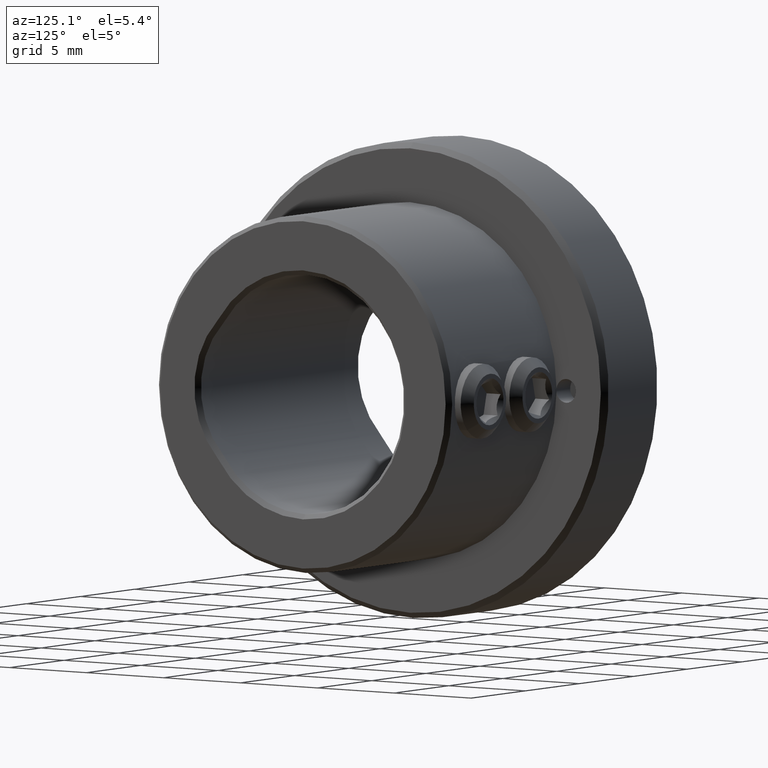
[diagram: clean part render]
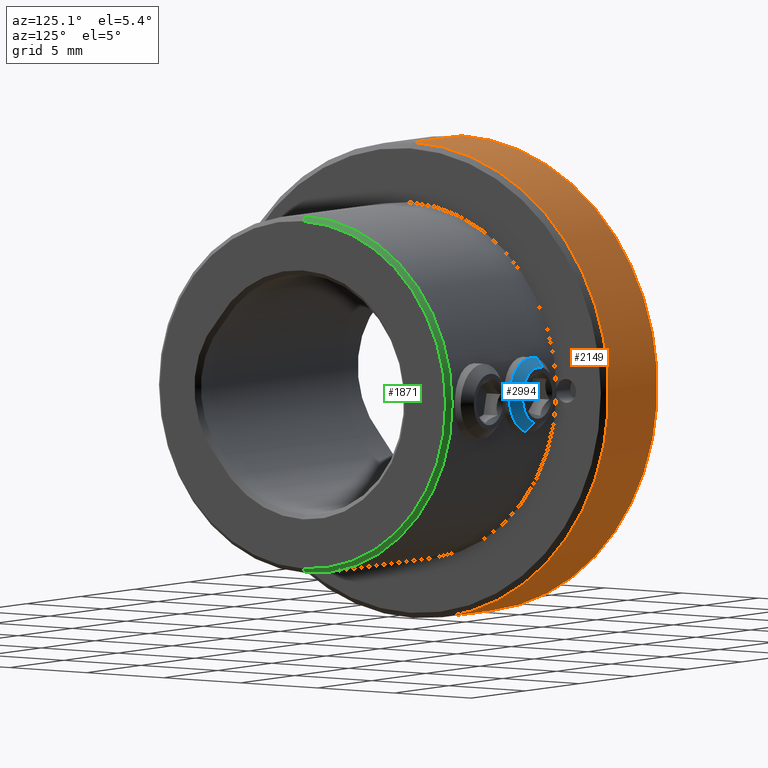
[diagram: same view with three faces highlighted in distinct colors, each labeled with its STEP entity id]
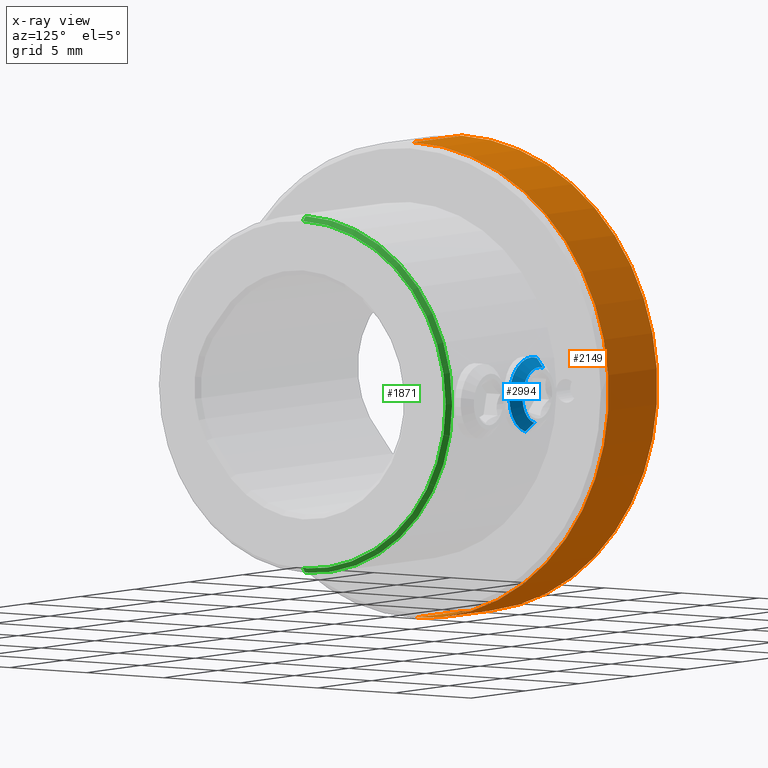
[diagram: x-ray of the same camera — body ghosted, the three highlighted faces saturated]
A machine part, auxiliary view with three faces highlighted in distinct colors.
The next image is the same camera in x-ray (body ghosted, the three faces saturated) — at least one of them is partly hidden behind the body in this view.
Their STEP definitions:

[orange] entity #2149 — the highlighted cylindrical surface (partial cylindrical patch) has radius 12.7 mm, axis along (-1, -0, -0).
#112 = ORIENTED_EDGE ( 'NONE', *, *, #961, .T. ) ;
#121 = VERTEX_POINT ( 'NONE', #1655 ) ;
#179 = DIRECTION ( 'NONE',  ( 0.000000000000000000, 0.000000000000000000, -1.000000000000000000 ) ) ;
#249 = LINE ( 'NONE', #1357, #844 ) ;
#397 = ORIENTED_EDGE ( 'NONE', *, *, #4854, .T. ) ;
#533 = CARTESIAN_POINT ( 'NONE',  ( 0.2999999999999964362, 0.000000000000000000, 0.000000000000000000 ) ) ;
#555 = CIRCLE ( 'NONE', #2724, 12.69999999999999929 ) ;
#613 = AXIS2_PLACEMENT_3D ( 'NONE', #533, #3509, #179 ) ;
#685 = CARTESIAN_POINT ( 'NONE',  ( 15.00000000000000000, 0.000000000000000000, 0.000000000000000000 ) ) ;
#765 = FACE_OUTER_BOUND ( 'NONE', #975, .T. ) ;
#844 = VECTOR ( 'NONE', #2106, 1000.000000000000000 ) ;
#936 = EDGE_CURVE ( 'NONE', #1084, #3660, #988, .T. ) ;
#961 = EDGE_CURVE ( 'NONE', #1695, #121, #249, .T. ) ;
#975 = EDGE_LOOP ( 'NONE', ( #397, #112, #4475, #3399 ) ) ;
#988 = LINE ( 'NONE', #4377, #1464 ) ;
#1084 = VERTEX_POINT ( 'NONE', #4241 ) ;
#1201 = CARTESIAN_POINT ( 'NONE',  ( 4.800000000000002487, 0.000000000000000000, 0.000000000000000000 ) ) ;
#1357 = CARTESIAN_POINT ( 'NONE',  ( 15.00000000000000000, 1.555301434917138433E-15, -12.69999999999999929 ) ) ;
#1464 = VECTOR ( 'NONE', #4007, 1000.000000000000000 ) ;
#1655 = CARTESIAN_POINT ( 'NONE',  ( 0.2999999999999964362, 1.555301434917138433E-15, -12.69999999999999929 ) ) ;
#1668 = CARTESIAN_POINT ( 'NONE',  ( 0.2999999999999964362, 0.000000000000000000, 12.69999999999999929 ) ) ;
#1695 = VERTEX_POINT ( 'NONE', #1808 ) ;
#1808 = CARTESIAN_POINT ( 'NONE',  ( 4.800000000000002487, 1.555301434917138433E-15, -12.69999999999999929 ) ) ;
#2047 = EDGE_CURVE ( 'NONE', #121, #3660, #2711, .T. ) ;
#2106 = DIRECTION ( 'NONE',  ( -1.000000000000000000, -0.000000000000000000, -0.000000000000000000 ) ) ;
#2149 = ADVANCED_FACE ( 'NONE', ( #765 ), #2613, .T. ) ;
#2171 = DIRECTION ( 'NONE',  ( 0.000000000000000000, 0.000000000000000000, 1.000000000000000000 ) ) ;
#2199 = DIRECTION ( 'NONE',  ( -1.000000000000000000, -0.000000000000000000, -0.000000000000000000 ) ) ;
#2473 = AXIS2_PLACEMENT_3D ( 'NONE', #685, #2199, #2171 ) ;
#2613 = CYLINDRICAL_SURFACE ( 'NONE', #2473, 12.69999999999999929 ) ;
#2711 = CIRCLE ( 'NONE', #613, 12.69999999999999929 ) ;
#2724 = AXIS2_PLACEMENT_3D ( 'NONE', #1201, #3446, #3726 ) ;
#3399 = ORIENTED_EDGE ( 'NONE', *, *, #936, .F. ) ;
#3446 = DIRECTION ( 'NONE',  ( -1.000000000000000000, 0.000000000000000000, 0.000000000000000000 ) ) ;
#3509 = DIRECTION ( 'NONE',  ( 1.000000000000000000, -0.000000000000000000, -0.000000000000000000 ) ) ;
#3660 = VERTEX_POINT ( 'NONE', #1668 ) ;
#3726 = DIRECTION ( 'NONE',  ( 0.000000000000000000, 0.000000000000000000, -1.000000000000000000 ) ) ;
#4007 = DIRECTION ( 'NONE',  ( -1.000000000000000000, -0.000000000000000000, -0.000000000000000000 ) ) ;
#4241 = CARTESIAN_POINT ( 'NONE',  ( 4.800000000000002487, 0.000000000000000000, 12.69999999999999929 ) ) ;
#4377 = CARTESIAN_POINT ( 'NONE',  ( 15.00000000000000000, 0.000000000000000000, 12.69999999999999929 ) ) ;
#4475 = ORIENTED_EDGE ( 'NONE', *, *, #2047, .T. ) ;
#4854 = EDGE_CURVE ( 'NONE', #1084, #1695, #555, .T. ) ;

[blue] entity #2994 — the highlighted conical surface has half-angle 45 deg.
#174 = EDGE_CURVE ( 'NONE', #3654, #2437, #1680, .T. ) ;
#291 = DIRECTION ( 'NONE',  ( 0.000000000000000000, -0.7071067811865484609, -0.7071067811865465735 ) ) ;
#373 = DIRECTION ( 'NONE',  ( 8.659560562354921765E-17, -0.7071067811865484609, 0.7071067811865465735 ) ) ;
#395 = AXIS2_PLACEMENT_3D ( 'NONE', #672, #3661, #1777 ) ;
#487 = ORIENTED_EDGE ( 'NONE', *, *, #1049, .T. ) ;
#672 = CARTESIAN_POINT ( 'NONE',  ( 0.000000000000000000, 3.000000000000000000, 0.000000000000000000 ) ) ;
#686 = LINE ( 'NONE', #2124, #1486 ) ;
#926 = VECTOR ( 'NONE', #373, 1000.000000000000000 ) ;
#1011 = DIRECTION ( 'NONE',  ( 0.000000000000000000, -1.000000000000000000, 0.000000000000000000 ) ) ;
#1026 = EDGE_CURVE ( 'NONE', #1762, #2089, #2950, .T. ) ;
#1049 = EDGE_CURVE ( 'NONE', #1762, #2437, #2691, .T. ) ;
#1238 = AXIS2_PLACEMENT_3D ( 'NONE', #4289, #1011, #3221 ) ;
#1253 = CARTESIAN_POINT ( 'NONE',  ( 0.000000000000000000, 2.499999999999999112, 0.000000000000000000 ) ) ;
#1486 = VECTOR ( 'NONE', #291, 1000.000000000000000 ) ;
#1680 = CIRCLE ( 'NONE', #4389, 2.000000000000000000 ) ;
#1762 = VERTEX_POINT ( 'NONE', #3670 ) ;
#1777 = DIRECTION ( 'NONE',  ( 0.000000000000000000, 0.000000000000000000, 1.000000000000000000 ) ) ;
#1889 = CARTESIAN_POINT ( 'NONE',  ( 0.000000000000000000, 3.000000000000000000, -1.500000000000000444 ) ) ;
#2089 = VERTEX_POINT ( 'NONE', #1889 ) ;
#2124 = CARTESIAN_POINT ( 'NONE',  ( 0.000000000000000000, 3.000000000000000000, -1.500000000000000444 ) ) ;
#2397 = CONICAL_SURFACE ( 'NONE', #1238, 1.500000000000000444, 0.7853981633974469467 ) ;
#2437 = VERTEX_POINT ( 'NONE', #4786 ) ;
#2691 = LINE ( 'NONE', #4519, #926 ) ;
#2737 = DIRECTION ( 'NONE',  ( 0.000000000000000000, 0.000000000000000000, 1.000000000000000000 ) ) ;
#2950 = CIRCLE ( 'NONE', #395, 1.500000000000000444 ) ;
#2994 = ADVANCED_FACE ( 'NONE', ( #4665 ), #2397, .T. ) ;
#3064 = DIRECTION ( 'NONE',  ( 0.000000000000000000, -1.000000000000000000, 0.000000000000000000 ) ) ;
#3221 = DIRECTION ( 'NONE',  ( 0.000000000000000000, 0.000000000000000000, -1.000000000000000000 ) ) ;
#3442 = ORIENTED_EDGE ( 'NONE', *, *, #174, .F. ) ;
#3555 = ORIENTED_EDGE ( 'NONE', *, *, #1026, .F. ) ;
#3654 = VERTEX_POINT ( 'NONE', #4229 ) ;
#3661 = DIRECTION ( 'NONE',  ( 0.000000000000000000, 1.000000000000000000, 0.000000000000000000 ) ) ;
#3670 = CARTESIAN_POINT ( 'NONE',  ( 2.143131898507868297E-16, 3.000000000000000000, 1.500000000000000444 ) ) ;
#4229 = CARTESIAN_POINT ( 'NONE',  ( 0.000000000000000000, 2.499999999999999112, -2.000000000000000000 ) ) ;
#4266 = ORIENTED_EDGE ( 'NONE', *, *, #4463, .F. ) ;
#4289 = CARTESIAN_POINT ( 'NONE',  ( 0.000000000000000000, 3.000000000000000000, 0.000000000000000000 ) ) ;
#4389 = AXIS2_PLACEMENT_3D ( 'NONE', #1253, #3064, #2737 ) ;
#4463 = EDGE_CURVE ( 'NONE', #2089, #3654, #686, .T. ) ;
#4519 = CARTESIAN_POINT ( 'NONE',  ( 1.836970198721030427E-16, 3.000000000000000000, 1.500000000000000444 ) ) ;
#4665 = FACE_OUTER_BOUND ( 'NONE', #4752, .T. ) ;
#4752 = EDGE_LOOP ( 'NONE', ( #3555, #487, #3442, #4266 ) ) ;
#4786 = CARTESIAN_POINT ( 'NONE',  ( 2.449293598294706414E-16, 2.499999999999999112, 2.000000000000000000 ) ) ;

[green] entity #1871 — the highlighted conical surface has half-angle 45 deg.
#72 = CIRCLE ( 'NONE', #2784, 9.525000000000000355 ) ;
#122 = CARTESIAN_POINT ( 'NONE',  ( 14.75000000000000000, 1.166476076187854022E-15, 9.525000000000000355 ) ) ;
#235 = DIRECTION ( 'NONE',  ( -1.000000000000000000, 0.000000000000000000, 0.000000000000000000 ) ) ;
#239 = DIRECTION ( 'NONE',  ( 1.000000000000000000, 0.000000000000000000, 0.000000000000000000 ) ) ;
#265 = DIRECTION ( 'NONE',  ( 0.000000000000000000, 0.000000000000000000, -1.000000000000000000 ) ) ;
#349 = EDGE_CURVE ( 'NONE', #2941, #4759, #72, .T. ) ;
#706 = CARTESIAN_POINT ( 'NONE',  ( 15.00000000000000000, 1.151167991198512128E-15, -9.275000000000002132 ) ) ;
#757 = CARTESIAN_POINT ( 'NONE',  ( 15.00000000000000000, 0.000000000000000000, 0.000000000000000000 ) ) ;
#792 = DIRECTION ( 'NONE',  ( -0.7071067811865500152, 0.000000000000000000, 0.7071067811865451302 ) ) ;
#808 = DIRECTION ( 'NONE',  ( -0.7071067811865500152, 8.659560562354903276E-17, -0.7071067811865451302 ) ) ;
#982 = CARTESIAN_POINT ( 'NONE',  ( 15.00000000000000000, 0.000000000000000000, 0.000000000000000000 ) ) ;
#1412 = EDGE_CURVE ( 'NONE', #1677, #4759, #3389, .T. ) ;
#1634 = AXIS2_PLACEMENT_3D ( 'NONE', #757, #2238, #3740 ) ;
#1677 = VERTEX_POINT ( 'NONE', #706 ) ;
#1867 = CARTESIAN_POINT ( 'NONE',  ( 15.00000000000000000, 0.000000000000000000, 9.275000000000002132 ) ) ;
#1871 = ADVANCED_FACE ( 'NONE', ( #4127 ), #2555, .T. ) ;
#1941 = CARTESIAN_POINT ( 'NONE',  ( 15.00000000000000000, 1.135859906209170235E-15, -9.275000000000002132 ) ) ;
#2104 = ORIENTED_EDGE ( 'NONE', *, *, #1412, .T. ) ;
#2125 = DIRECTION ( 'NONE',  ( 0.000000000000000000, 0.000000000000000000, -1.000000000000000000 ) ) ;
#2238 = DIRECTION ( 'NONE',  ( -1.000000000000000000, 0.000000000000000000, 0.000000000000000000 ) ) ;
#2247 = CARTESIAN_POINT ( 'NONE',  ( 14.75000000000000000, 0.000000000000000000, -9.525000000000000355 ) ) ;
#2428 = ORIENTED_EDGE ( 'NONE', *, *, #4816, .F. ) ;
#2555 = CONICAL_SURFACE ( 'NONE', #1634, 9.275000000000002132, 0.7853981633974447263 ) ;
#2713 = EDGE_LOOP ( 'NONE', ( #3238, #2104, #3376, #2428 ) ) ;
#2780 = CARTESIAN_POINT ( 'NONE',  ( 14.75000000000000000, 0.000000000000000000, 0.000000000000000000 ) ) ;
#2784 = AXIS2_PLACEMENT_3D ( 'NONE', #2780, #235, #265 ) ;
#2941 = VERTEX_POINT ( 'NONE', #122 ) ;
#3009 = LINE ( 'NONE', #1867, #3754 ) ;
#3031 = VECTOR ( 'NONE', #808, 1000.000000000000114 ) ;
#3053 = EDGE_CURVE ( 'NONE', #1677, #3918, #4234, .T. ) ;
#3238 = ORIENTED_EDGE ( 'NONE', *, *, #3053, .F. ) ;
#3339 = AXIS2_PLACEMENT_3D ( 'NONE', #982, #239, #2125 ) ;
#3376 = ORIENTED_EDGE ( 'NONE', *, *, #349, .F. ) ;
#3389 = LINE ( 'NONE', #1941, #3031 ) ;
#3740 = DIRECTION ( 'NONE',  ( 0.000000000000000000, 0.000000000000000000, 1.000000000000000000 ) ) ;
#3754 = VECTOR ( 'NONE', #792, 1000.000000000000114 ) ;
#3918 = VERTEX_POINT ( 'NONE', #4279 ) ;
#4127 = FACE_OUTER_BOUND ( 'NONE', #2713, .T. ) ;
#4234 = CIRCLE ( 'NONE', #3339, 9.275000000000002132 ) ;
#4279 = CARTESIAN_POINT ( 'NONE',  ( 15.00000000000000000, 0.000000000000000000, 9.275000000000002132 ) ) ;
#4759 = VERTEX_POINT ( 'NONE', #2247 ) ;
#4816 = EDGE_CURVE ( 'NONE', #3918, #2941, #3009, .T. ) ;